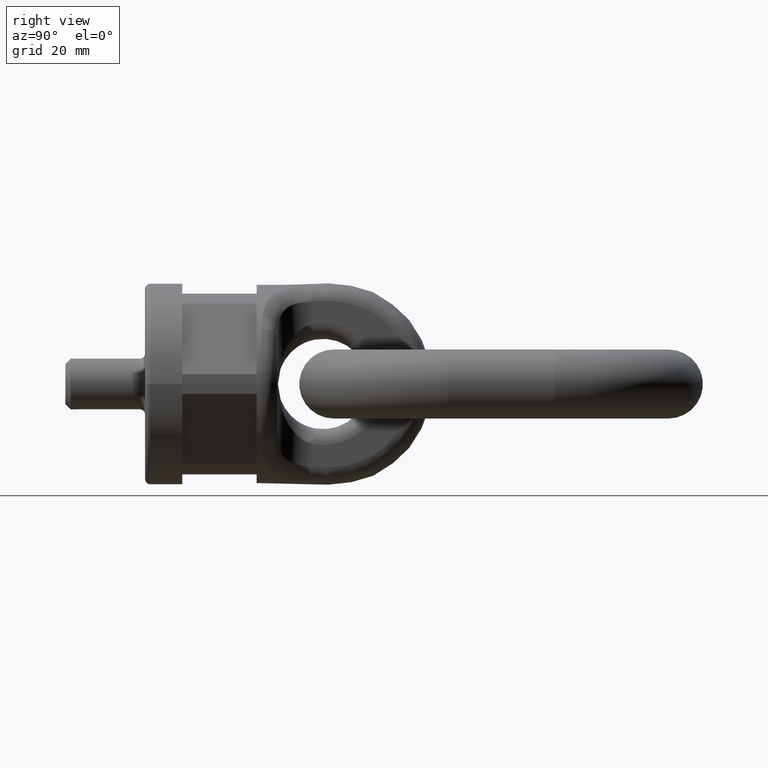
[diagram: clean part render]
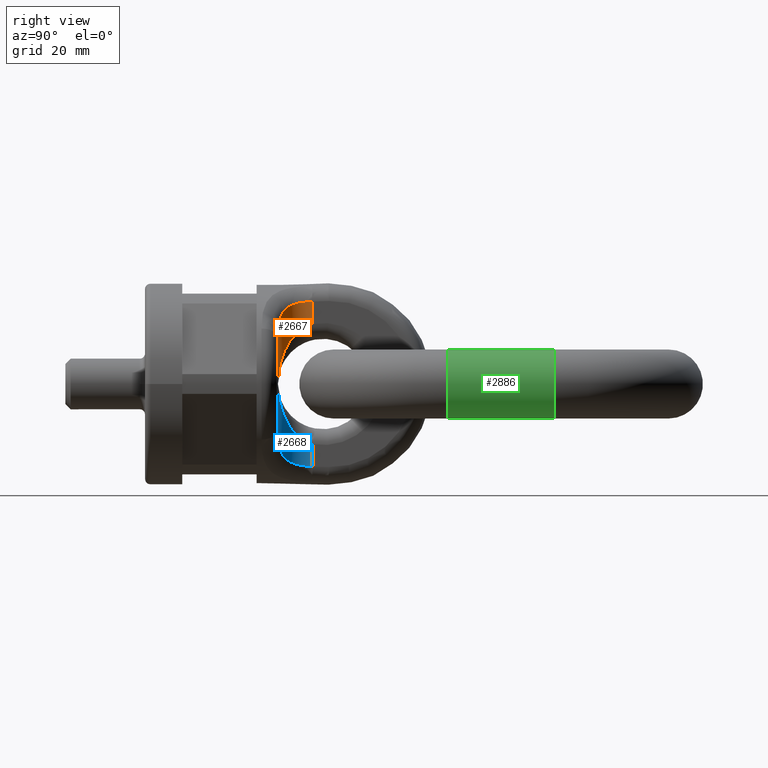
[diagram: same view with three faces highlighted in distinct colors, each labeled with its STEP entity id]
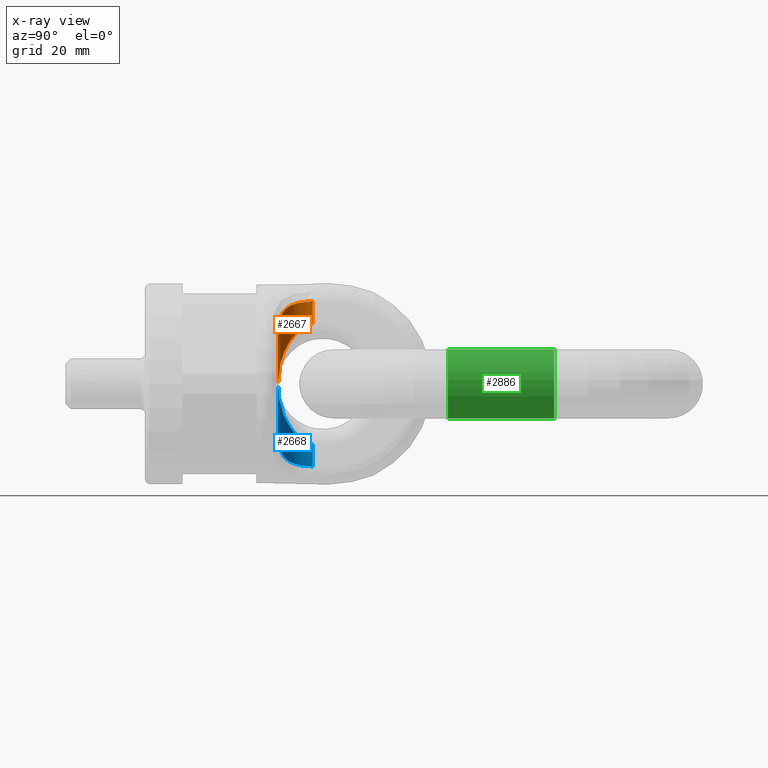
[diagram: x-ray of the same camera — body ghosted, the three highlighted faces saturated]
A machine part, right view with three faces highlighted in distinct colors.
The next image is the same camera in x-ray (body ghosted, the three faces saturated) — at least one of them is partly hidden behind the body in this view.
Their STEP definitions:

[orange] entity #2667 — the highlighted cylindrical surface (edge-blend (fillet) strip) has radius 6.5 mm, axis along (0, 0, -1).
#353=B_SPLINE_CURVE_WITH_KNOTS('',3,(#6982,#6983,#6984,#6985,#6986,#6987,
#6988,#6989),.UNSPECIFIED.,.F.,.F.,(4,2,2,4),(0.,0.5,0.75,1.),
 .UNSPECIFIED.);
#354=B_SPLINE_CURVE_WITH_KNOTS('',3,(#6990,#6991,#6992,#6993,#6994,#6995,
#6996,#6997),.UNSPECIFIED.,.F.,.F.,(4,2,2,4),(0.,0.25,0.5,1.),
 .UNSPECIFIED.);
#1820=FACE_OUTER_BOUND('',#3102,.T.);
#2028=CYLINDRICAL_SURFACE('',#5650,6.5);
#2071=LINE('',#6788,#2327);
#2099=LINE('',#6979,#2355);
#2327=VECTOR('',#5927,1.);
#2355=VECTOR('',#5961,1.);
#2667=ADVANCED_FACE('',(#1820),#2028,.F.);
#3102=EDGE_LOOP('',(#3513,#3514,#3515,#3516));
#3513=ORIENTED_EDGE('',*,*,#5060,.F.);
#3514=ORIENTED_EDGE('',*,*,#5061,.T.);
#3515=ORIENTED_EDGE('',*,*,#5008,.F.);
#3516=ORIENTED_EDGE('',*,*,#5062,.T.);
#4598=VERTEX_POINT('',#6789);
#4599=VERTEX_POINT('',#6790);
#4650=VERTEX_POINT('',#6980);
#4651=VERTEX_POINT('',#6981);
#5008=EDGE_CURVE('',#4598,#4599,#2071,.T.);
#5060=EDGE_CURVE('',#4650,#4651,#2099,.T.);
#5061=EDGE_CURVE('',#4650,#4599,#353,.T.);
#5062=EDGE_CURVE('',#4598,#4651,#354,.T.);
#5650=AXIS2_PLACEMENT_3D('',#6998,#5962,#5963);
#5927=DIRECTION('',(0.,0.,-1.));
#5961=DIRECTION('',(0.,0.,1.));
#5962=DIRECTION('',(0.,0.,-1.));
#5963=DIRECTION('',(-1.,0.,0.));
#6788=CARTESIAN_POINT('',(6.5,31.5,-17.5879640283967));
#6789=CARTESIAN_POINT('',(6.5,31.5,15.5261697642409));
#6790=CARTESIAN_POINT('',(6.5,31.5,11.3247516529061));
#6979=CARTESIAN_POINT('',(13.,25.,17.5879640283967));
#6980=CARTESIAN_POINT('',(13.,25.,0.));
#6981=CARTESIAN_POINT('',(13.,25.,8.75457788886274));
#6982=CARTESIAN_POINT('',(13.,25.,-1.4607242850958E-15));
#6983=CARTESIAN_POINT('',(11.6363297239822,25.,2.1928391153495));
#6984=CARTESIAN_POINT('',(10.2574544218147,25.3999302230208,4.40371109912026));
#6985=CARTESIAN_POINT('',(8.39089552933356,26.849542187957,7.51255852914361));
#6986=CARTESIAN_POINT('',(7.80904231767957,27.4707738126975,8.50219585972227));
#6987=CARTESIAN_POINT('',(6.86255400838728,29.1521367100866,10.2479499623017));
#6988=CARTESIAN_POINT('',(6.5,30.225828042753,10.995870035153));
#6989=CARTESIAN_POINT('',(6.5,31.5,11.3247516529061));
#6990=CARTESIAN_POINT('',(6.5,31.5,15.5261697642409));
#6991=CARTESIAN_POINT('',(6.5,30.4023984418045,15.484143703934));
#6992=CARTESIAN_POINT('',(6.78545360090915,29.3252350292592,15.3619240039014));
#6993=CARTESIAN_POINT('',(7.78495973122834,27.4808527497112,14.8402538309278));
#6994=CARTESIAN_POINT('',(8.49812095313622,26.7237377680075,14.4221665651141));
#6995=CARTESIAN_POINT('',(10.7273783797691,25.1436193933453,12.5839638700304));
#6996=CARTESIAN_POINT('',(12.0856010531234,25.,10.7390916154191));
#6997=CARTESIAN_POINT('',(13.,25.,8.75457788886274));
#6998=CARTESIAN_POINT('',(13.,31.5,20.9));

[blue] entity #2668 — the highlighted cylindrical surface (edge-blend (fillet) strip) has radius 6.5 mm, axis along (0, 0, -1).
#355=B_SPLINE_CURVE_WITH_KNOTS('',3,(#6999,#7000,#7001,#7002,#7003,#7004,
#7005,#7006),.UNSPECIFIED.,.F.,.F.,(4,2,2,4),(0.,0.25,0.5,1.),
 .UNSPECIFIED.);
#356=B_SPLINE_CURVE_WITH_KNOTS('',3,(#7009,#7010,#7011,#7012,#7013,#7014,
#7015,#7016,#7017,#7018),.UNSPECIFIED.,.F.,.F.,(4,2,2,2,4),(0.,0.25,0.5,
0.75,1.),.UNSPECIFIED.);
#1821=FACE_OUTER_BOUND('',#3103,.T.);
#2029=CYLINDRICAL_SURFACE('',#5651,6.5);
#2072=LINE('',#6793,#2328);
#2100=LINE('',#7007,#2356);
#2328=VECTOR('',#5930,1.);
#2356=VECTOR('',#5964,1.);
#2668=ADVANCED_FACE('',(#1821),#2029,.F.);
#3103=EDGE_LOOP('',(#3517,#3518,#3519,#3520));
#3517=ORIENTED_EDGE('',*,*,#5010,.F.);
#3518=ORIENTED_EDGE('',*,*,#5063,.T.);
#3519=ORIENTED_EDGE('',*,*,#5064,.F.);
#3520=ORIENTED_EDGE('',*,*,#5065,.T.);
#4600=VERTEX_POINT('',#6792);
#4601=VERTEX_POINT('',#6794);
#4650=VERTEX_POINT('',#6980);
#4652=VERTEX_POINT('',#7008);
#5010=EDGE_CURVE('',#4600,#4601,#2072,.T.);
#5063=EDGE_CURVE('',#4600,#4650,#355,.T.);
#5064=EDGE_CURVE('',#4652,#4650,#2100,.T.);
#5065=EDGE_CURVE('',#4652,#4601,#356,.T.);
#5651=AXIS2_PLACEMENT_3D('',#7019,#5965,#5966);
#5930=DIRECTION('',(0.,0.,-1.));
#5964=DIRECTION('',(0.,0.,1.));
#5965=DIRECTION('',(0.,0.,-1.));
#5966=DIRECTION('',(-1.,0.,0.));
#6792=CARTESIAN_POINT('',(6.5,31.5,-11.3247516529061));
#6793=CARTESIAN_POINT('',(6.5,31.5,-17.5879640283967));
#6794=CARTESIAN_POINT('',(6.5,31.5,-15.5261697642409));
#6980=CARTESIAN_POINT('',(13.,25.,0.));
#6999=CARTESIAN_POINT('',(6.5,31.5,-11.3247516529061));
#7000=CARTESIAN_POINT('',(6.5,30.225828042753,-10.995870035153));
#7001=CARTESIAN_POINT('',(6.86255400838728,29.1521367100866,-10.2479499623017));
#7002=CARTESIAN_POINT('',(7.80904231767957,27.4707738126975,-8.50219585972227));
#7003=CARTESIAN_POINT('',(8.39089552933356,26.849542187957,-7.51255852914361));
#7004=CARTESIAN_POINT('',(10.2574544218147,25.3999302230208,-4.40371109912026));
#7005=CARTESIAN_POINT('',(11.6363297239822,25.,-2.1928391153495));
#7006=CARTESIAN_POINT('',(13.,25.,1.46072428509581E-15));
#7007=CARTESIAN_POINT('',(13.,25.,17.5879640283967));
#7008=CARTESIAN_POINT('',(13.,25.,-8.75457788886275));
#7009=CARTESIAN_POINT('',(13.,25.,-8.75457788886275));
#7010=CARTESIAN_POINT('',(12.5432342068989,25.,-9.74589353869675));
#7011=CARTESIAN_POINT('',(12.001789199936,25.0431297891709,-10.6829116689343));
#7012=CARTESIAN_POINT('',(10.7214827336039,25.3766057788517,-12.4179509670953));
#7013=CARTESIAN_POINT('',(9.9845125076677,25.6715979797211,-13.1955476487339));
#7014=CARTESIAN_POINT('',(8.51154745203595,26.7128057642207,-14.4120554955105));
#7015=CARTESIAN_POINT('',(7.79349446904804,27.4689694652163,-14.8355156095421));
#7016=CARTESIAN_POINT('',(6.78772173770684,29.3172252044629,-15.3610208751525));
#7017=CARTESIAN_POINT('',(6.49999999999999,30.4007705916971,-15.4840813751898));
#7018=CARTESIAN_POINT('',(6.49999999999999,31.5,-15.5261697642409));
#7019=CARTESIAN_POINT('',(13.,31.5,20.9));

[green] entity #2886 — the highlighted cylindrical surface (bore or boss wall) has radius 6.5 mm, axis along (0, 1, 0).
#2040=CYLINDRICAL_SURFACE('',#5807,6.5);
#2886=ADVANCED_FACE('',(#3061,#3062),#2040,.T.);
#3061=FACE_BOUND('',#3347,.T.);
#3062=FACE_BOUND('',#3348,.T.);
#3347=EDGE_LOOP('',(#4539));
#3348=EDGE_LOOP('',(#4540));
#4539=ORIENTED_EDGE('',*,*,#5535,.F.);
#4540=ORIENTED_EDGE('',*,*,#5536,.T.);
#4939=VERTEX_POINT('',#9731);
#4940=VERTEX_POINT('',#9734);
#5535=EDGE_CURVE('',#4939,#4939,#5601,.T.);
#5536=EDGE_CURVE('',#4940,#4940,#5602,.T.);
#5601=CIRCLE('',#5804,6.5);
#5602=CIRCLE('',#5806,6.5);
#5804=AXIS2_PLACEMENT_3D('',#9730,#6559,#6560);
#5806=AXIS2_PLACEMENT_3D('',#9733,#6563,#6564);
#5807=AXIS2_PLACEMENT_3D('',#9735,#6565,#6566);
#6559=DIRECTION('',(0.,-1.,0.));
#6560=DIRECTION('',(0.,0.,-1.));
#6563=DIRECTION('',(0.,-1.,0.));
#6564=DIRECTION('',(0.,0.,-1.));
#6565=DIRECTION('',(0.,1.,0.));
#6566=DIRECTION('',(0.,0.,1.));
#9730=CARTESIAN_POINT('',(21.5,57.,0.));
#9731=CARTESIAN_POINT('',(21.5,57.,-6.5));
#9733=CARTESIAN_POINT('',(21.5,77.,0.));
#9734=CARTESIAN_POINT('',(21.5,77.,-6.5));
#9735=CARTESIAN_POINT('',(21.5,57.,0.));